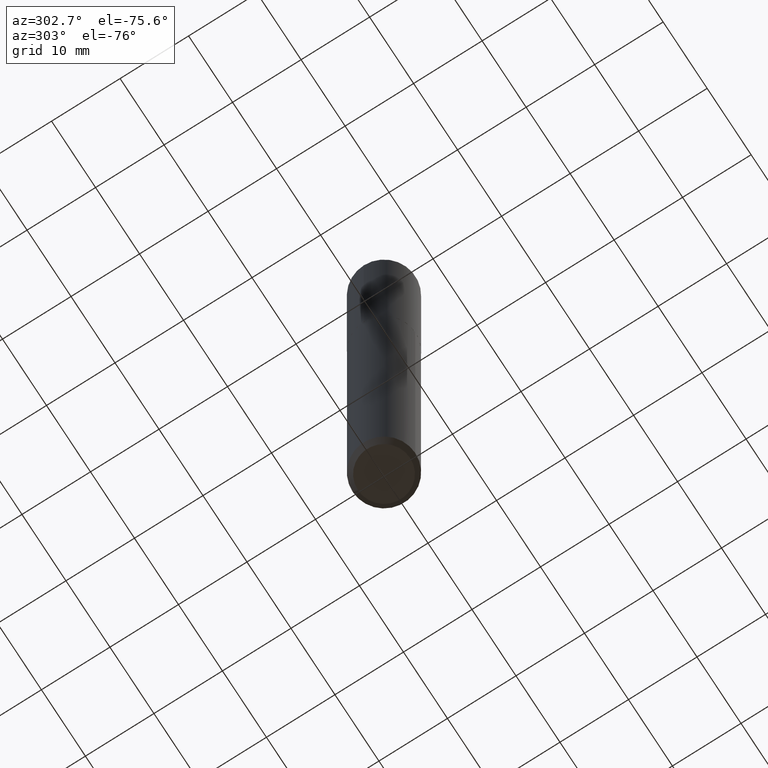
[diagram: clean part render]
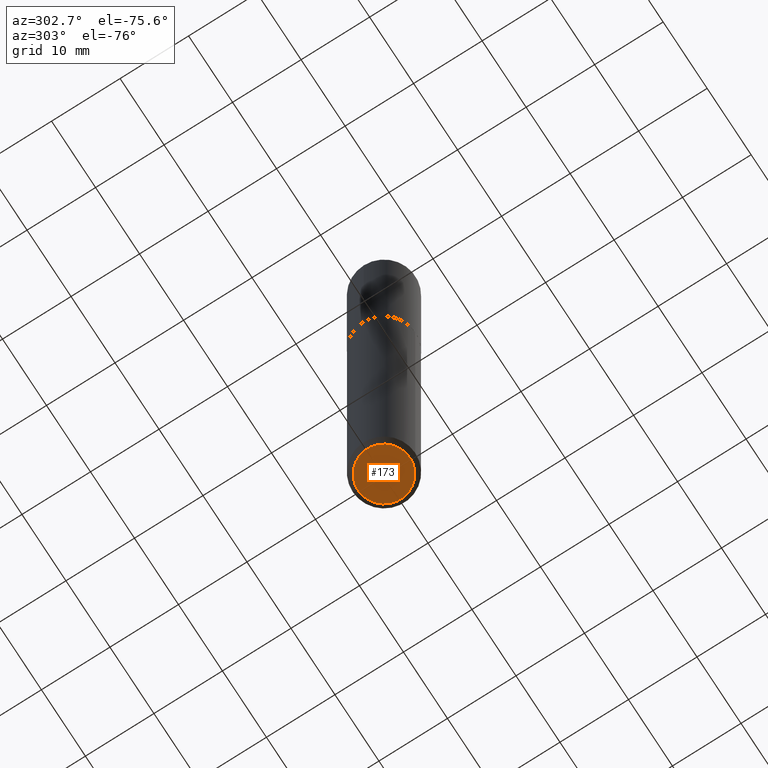
[diagram: same view with one face highlighted and labeled with its STEP entity id]
A machine part, auxiliary view. The second image highlights one B-rep face of the part: STEP entity #173.
In plain terms, the highlighted planar face has unit normal (-0, 0, 1).
Its self-contained STEP definition (entity closure, byte-faithful):
#60 = DIRECTION ( 'NONE',  ( -2.445601401447863561E-29, 3.491291454880066432E-15, 1.000000000000000000 ) ) ;
#119 = DIRECTION ( 'NONE',  ( -6.982962677686265922E-15, -1.000000000000000000, 3.649763518589529841E-15 ) ) ;
#125 = DIRECTION ( 'NONE',  ( -6.982962677686265922E-15, -1.000000000000000000, 3.649763518589529841E-15 ) ) ;
#130 = DIRECTION ( 'NONE',  ( -2.445601401447863841E-29, 3.491291454880066432E-15, 1.000000000000000000 ) ) ;
#156 = VERTEX_POINT ( 'NONE', #403 ) ;
#169 = CARTESIAN_POINT ( 'NONE',  ( 1.170263885796970099E-15, 0.1496999999999877595, -3.500000000000000444 ) ) ;
#173 = ADVANCED_FACE ( 'NONE', ( #208 ), #336, .F. ) ;
#182 = EDGE_CURVE ( 'NONE', #156, #372, #250, .T. ) ;
#187 = EDGE_LOOP ( 'NONE', ( #221, #320 ) ) ;
#192 = CARTESIAN_POINT ( 'NONE',  ( 8.559455735396955084E-29, -1.221973371153869488E-14, -3.500000000000000000 ) ) ;
#202 = CIRCLE ( 'NONE', #215, 0.1496999999999999997 ) ;
#208 = FACE_OUTER_BOUND ( 'NONE', #187, .T. ) ;
#211 = DIRECTION ( 'NONE',  ( -6.982962677686265922E-15, -1.000000000000000000, 3.491291454880066432E-15 ) ) ;
#215 = AXIS2_PLACEMENT_3D ( 'NONE', #192, #329, #119 ) ;
#221 = ORIENTED_EDGE ( 'NONE', *, *, #182, .F. ) ;
#250 = CIRCLE ( 'NONE', #377, 0.1496999999999999997 ) ;
#251 = AXIS2_PLACEMENT_3D ( 'NONE', #265, #60, #211 ) ;
#265 = CARTESIAN_POINT ( 'NONE',  ( 8.559140821647976968E-29, -1.222018468595100934E-14, -3.500000000000000000 ) ) ;
#283 = CARTESIAN_POINT ( 'NONE',  ( 8.559455735396955084E-29, -1.221973371153869488E-14, -3.500000000000000000 ) ) ;
#320 = ORIENTED_EDGE ( 'NONE', *, *, #325, .F. ) ;
#325 = EDGE_CURVE ( 'NONE', #372, #156, #202, .T. ) ;
#329 = DIRECTION ( 'NONE',  ( -2.445601401447863841E-29, 3.491291454880066432E-15, 1.000000000000000000 ) ) ;
#336 = PLANE ( 'NONE',  #251 ) ;
#372 = VERTEX_POINT ( 'NONE', #169 ) ;
#377 = AXIS2_PLACEMENT_3D ( 'NONE', #283, #130, #125 ) ;
#403 = CARTESIAN_POINT ( 'NONE',  ( -1.045349512849548414E-15, -0.1497000000000122122, -3.499999999999999112 ) ) ;